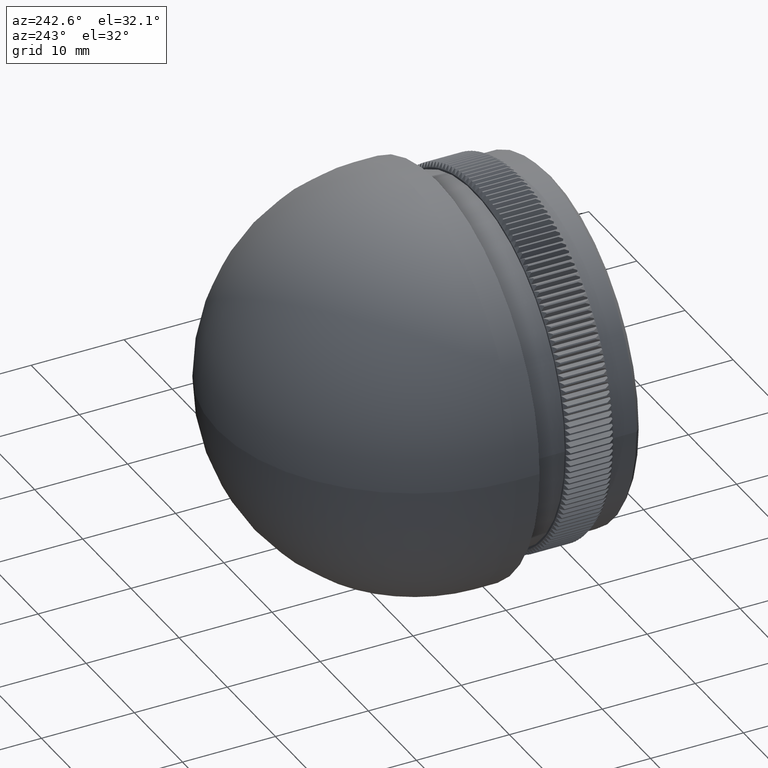
[diagram: clean part render]
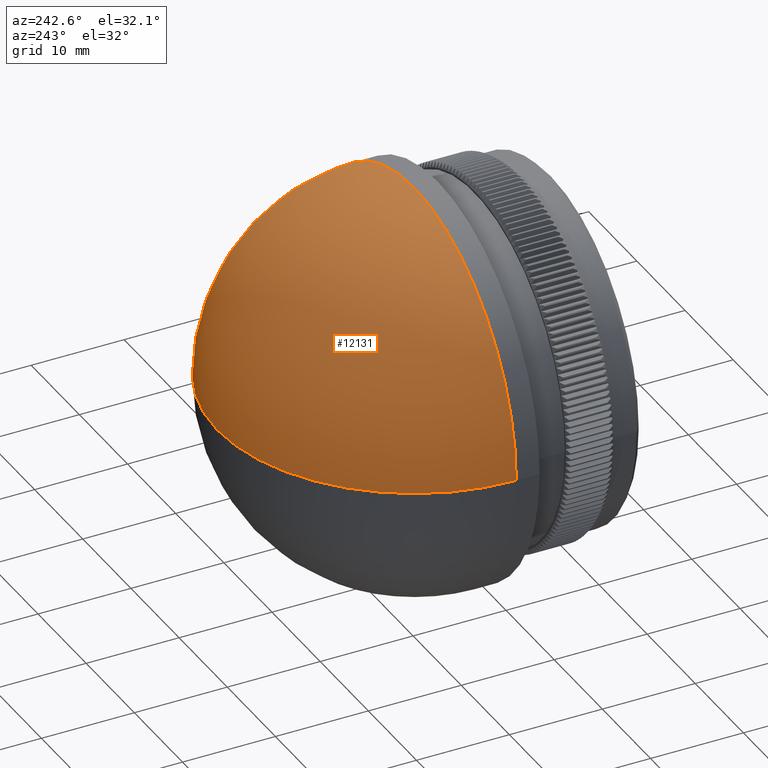
[diagram: same view with one face highlighted and labeled with its STEP entity id]
A machine part, auxiliary view. The second image highlights one B-rep face of the part: STEP entity #12131.
In plain terms, the highlighted spherical surface has radius 21.2 mm.
Its self-contained STEP definition (entity closure, byte-faithful):
#3316 = CARTESIAN_POINT ( 'NONE',  ( -21.20000000000002100, 14.70000000000005800, 2.596251214192391100E-015 ) ) ;
#3757 = DIRECTION ( 'NONE',  ( -0.0000000000000000000, 0.0000000000000000000, 1.000000000000000000 ) ) ;
#4477 = AXIS2_PLACEMENT_3D ( 'NONE', #18540, #36147, #27079 ) ;
#4601 = VERTEX_POINT ( 'NONE', #16462 ) ;
#4758 = CIRCLE ( 'NONE', #34894, 21.19999999999999600 ) ;
#7072 = DIRECTION ( 'NONE',  ( -1.388827867340710000E-015, -1.000000000000000000, -0.0000000000000000000 ) ) ;
#9670 = DIRECTION ( 'NONE',  ( 1.000000000000000000, -1.391051843943666200E-015, 0.0000000000000000000 ) ) ;
#10882 = ORIENTED_EDGE ( 'NONE', *, *, #30865, .T. ) ;
#12131 = ADVANCED_FACE ( 'NONE', ( #15909 ), #35121, .T. ) ;
#12189 = EDGE_CURVE ( 'NONE', #4601, #17686, #30073, .T. ) ;
#14406 = CARTESIAN_POINT ( 'NONE',  ( 2.894104559997262500E-014, 35.89999999999999100, 0.0000000000000000000 ) ) ;
#15909 = FACE_OUTER_BOUND ( 'NONE', #23033, .T. ) ;
#16462 = CARTESIAN_POINT ( 'NONE',  ( 21.19999999999999200, 14.69999999999999900, 0.0000000000000000000 ) ) ;
#16650 = DIRECTION ( 'NONE',  ( 1.224646799147353200E-016, -1.700823602305445300E-031, 1.000000000000000000 ) ) ;
#17686 = VERTEX_POINT ( 'NONE', #3316 ) ;
#18540 = CARTESIAN_POINT ( 'NONE',  ( -1.800230794746609100E-015, 14.69999999999999900, 0.0000000000000000000 ) ) ;
#18813 = CARTESIAN_POINT ( 'NONE',  ( -1.800230794746609100E-015, 14.69999999999999900, 0.0000000000000000000 ) ) ;
#20281 = CIRCLE ( 'NONE', #4477, 21.19999999999999600 ) ;
#20294 = ORIENTED_EDGE ( 'NONE', *, *, #12189, .F. ) ;
#21215 = VERTEX_POINT ( 'NONE', #14406 ) ;
#21502 = AXIS2_PLACEMENT_3D ( 'NONE', #18813, #3757, #9670 ) ;
#22390 = EDGE_CURVE ( 'NONE', #21215, #4601, #20281, .T. ) ;
#23033 = EDGE_LOOP ( 'NONE', ( #37903, #10882, #20294 ) ) ;
#26140 = AXIS2_PLACEMENT_3D ( 'NONE', #33374, #7072, #33499 ) ;
#27079 = DIRECTION ( 'NONE',  ( -1.000000000000000000, 0.0000000000000000000, 0.0000000000000000000 ) ) ;
#28912 = CARTESIAN_POINT ( 'NONE',  ( -1.800230794746609100E-015, 14.69999999999999900, 0.0000000000000000000 ) ) ;
#30073 = CIRCLE ( 'NONE', #26140, 21.20000000000001700 ) ;
#30865 = EDGE_CURVE ( 'NONE', #21215, #17686, #4758, .T. ) ;
#33374 = CARTESIAN_POINT ( 'NONE',  ( -2.430448767846237200E-014, 14.70000000000002900, 0.0000000000000000000 ) ) ;
#33499 = DIRECTION ( 'NONE',  ( 1.000000000000000000, -1.391051843943665000E-015, 0.0000000000000000000 ) ) ;
#34894 = AXIS2_PLACEMENT_3D ( 'NONE', #28912, #16650, #37339 ) ;
#35121 = SPHERICAL_SURFACE ( 'NONE', #21502, 21.19999999999999600 ) ;
#36147 = DIRECTION ( 'NONE',  ( 0.0000000000000000000, 0.0000000000000000000, -1.000000000000000000 ) ) ;
#37339 = DIRECTION ( 'NONE',  ( 1.000000000000000000, 0.0000000000000000000, -1.224646799147353200E-016 ) ) ;
#37903 = ORIENTED_EDGE ( 'NONE', *, *, #22390, .F. ) ;